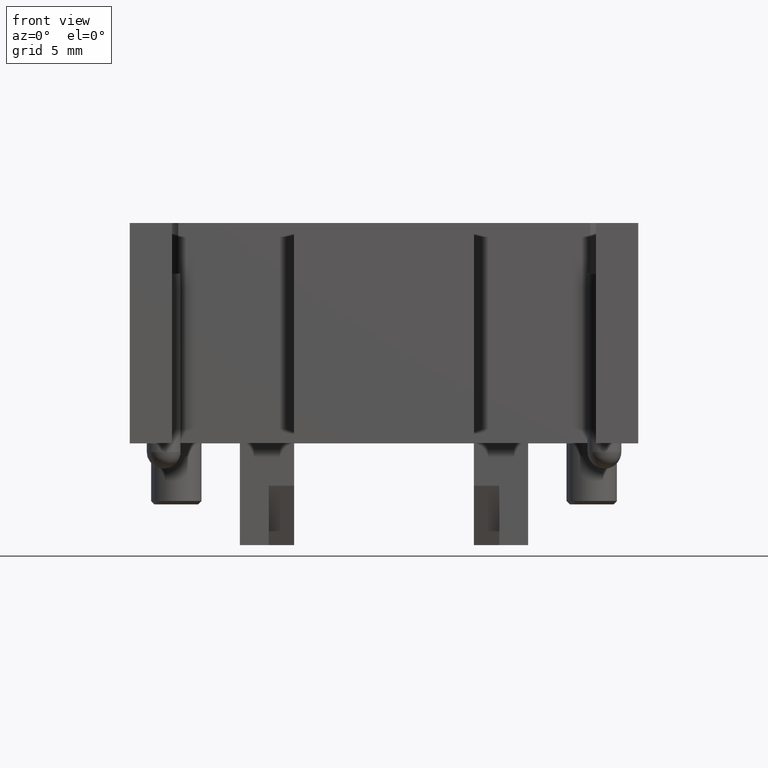
[diagram: clean part render]
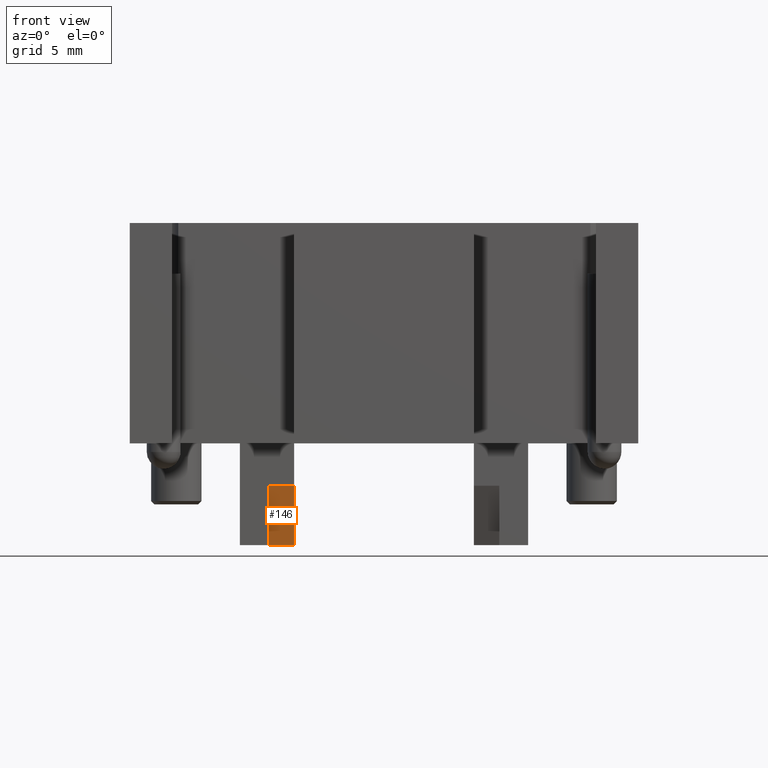
[diagram: same view with one face highlighted and labeled with its STEP entity id]
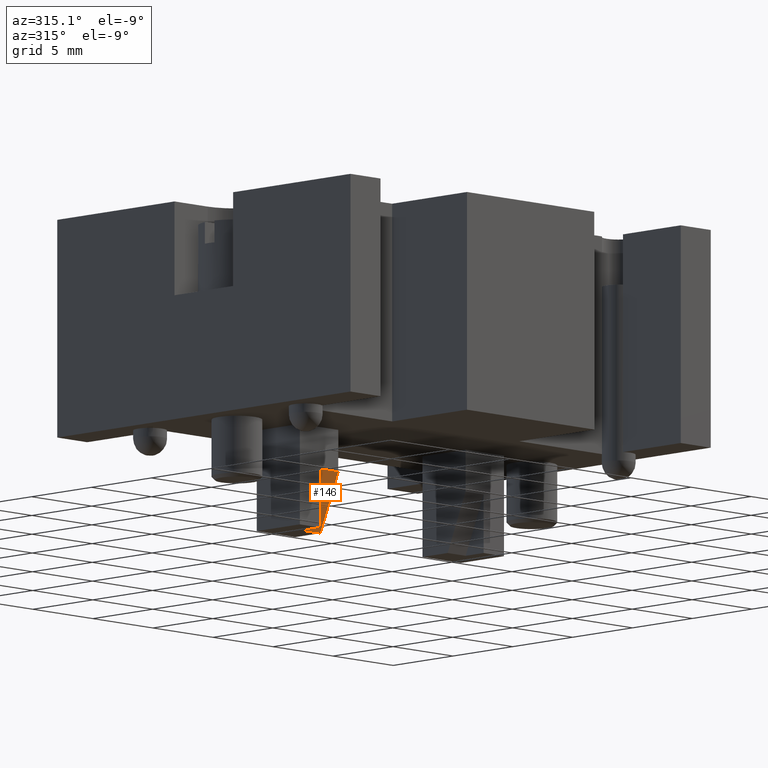
[diagram: same view with one face highlighted and labeled with its STEP entity id]
A machine part, front view. The second image highlights one B-rep face of the part: STEP entity #146.
A second angle (auxiliary view) of the same face is appended — the face is thin or edge-on in the first view.
In plain terms, the highlighted face is a freeform B-spline surface patch.
Its self-contained STEP definition (entity closure, byte-faithful):
#107=CARTESIAN_POINT('',(-16.852022867292334,5.614646248195265,-6.000000000000002));
#108=CARTESIAN_POINT('',(-16.852022867292334,4.114643525666449,-2.499993647432764));
#109=CARTESIAN_POINT('',(-15.352022867292332,5.614646248195266,-6.000000000000002));
#110=CARTESIAN_POINT('',(-15.352022867292334,4.114643525666451,-2.499993647432763));
#111=B_SPLINE_SURFACE_WITH_KNOTS('',1,1,((#107,#109),(#108,#110)),.UNSPECIFIED.,.F.,.F.,.U.,(2,2),(2,2),(0.0,3.807893464319200),(0.0,1.500000000000002),.UNSPECIFIED.);
#112=CARTESIAN_POINT('',(-16.852022867292330,4.114643525666449,-2.499993647432764));
#113=VERTEX_POINT('',#112);
#114=CARTESIAN_POINT('',(-16.852022867292330,5.614643525666448,-5.999993647432764));
#115=VERTEX_POINT('',#114);
#116=CARTESIAN_POINT('',(-16.852022867292330,4.114643525666449,-2.499993647432764));
#117=DIRECTION('',(0.0,0.393919298579167,-0.919145030018058));
#118=VECTOR('',#117,3.807886552931954);
#119=LINE('',#116,#118);
#120=EDGE_CURVE('',#113,#115,#119,.T.);
#121=ORIENTED_EDGE('',*,*,#120,.T.);
#122=CARTESIAN_POINT('',(-15.352022867292332,5.614643525666450,-5.999993647432764));
#123=VERTEX_POINT('',#122);
#124=CARTESIAN_POINT('',(-15.352022867292332,5.614643525666450,-5.999993647432764));
#125=DIRECTION('',(-1.0,0.0,0.0));
#126=VECTOR('',#125,1.499999999999998);
#127=LINE('',#124,#126);
#128=EDGE_CURVE('',#123,#115,#127,.T.);
#129=ORIENTED_EDGE('',*,*,#128,.F.);
#130=CARTESIAN_POINT('',(-15.352022867292330,4.114643525666450,-2.499993647432764));
#131=VERTEX_POINT('',#130);
#132=CARTESIAN_POINT('',(-15.352022867292330,4.114643525666450,-2.499993647432764));
#133=DIRECTION('',(-4.664942E-016,0.393919298579168,-0.919145030018058));
#134=VECTOR('',#133,3.807886552931955);
#135=LINE('',#132,#134);
#136=EDGE_CURVE('',#131,#123,#135,.T.);
#137=ORIENTED_EDGE('',*,*,#136,.F.);
#138=CARTESIAN_POINT('',(-16.852022867292330,4.114643525666449,-2.499993647432764));
#139=DIRECTION('',(1.0,0.0,0.0));
#140=VECTOR('',#139,1.500000000000000);
#141=LINE('',#138,#140);
#142=EDGE_CURVE('',#113,#131,#141,.T.);
#143=ORIENTED_EDGE('',*,*,#142,.F.);
#144=EDGE_LOOP('',(#121,#129,#137,#143));
#145=FACE_OUTER_BOUND('',#144,.T.);
#146=ADVANCED_FACE('',(#145),#111,.F.);